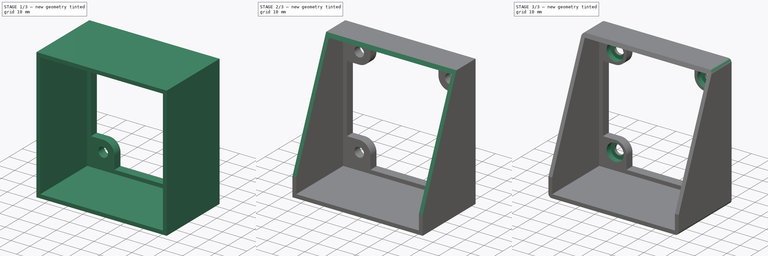
[diagram: build sequence overview — one tinted view per stage of 3, left to right]
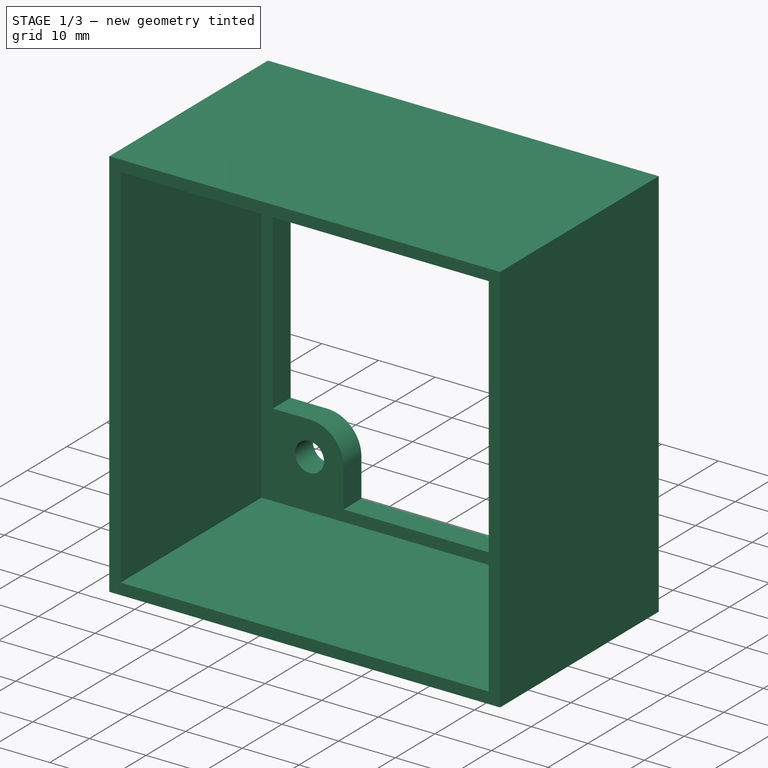
[diagram: stage 1 of 3 — iso view after this stage's code; geometry added in this stage tinted green]
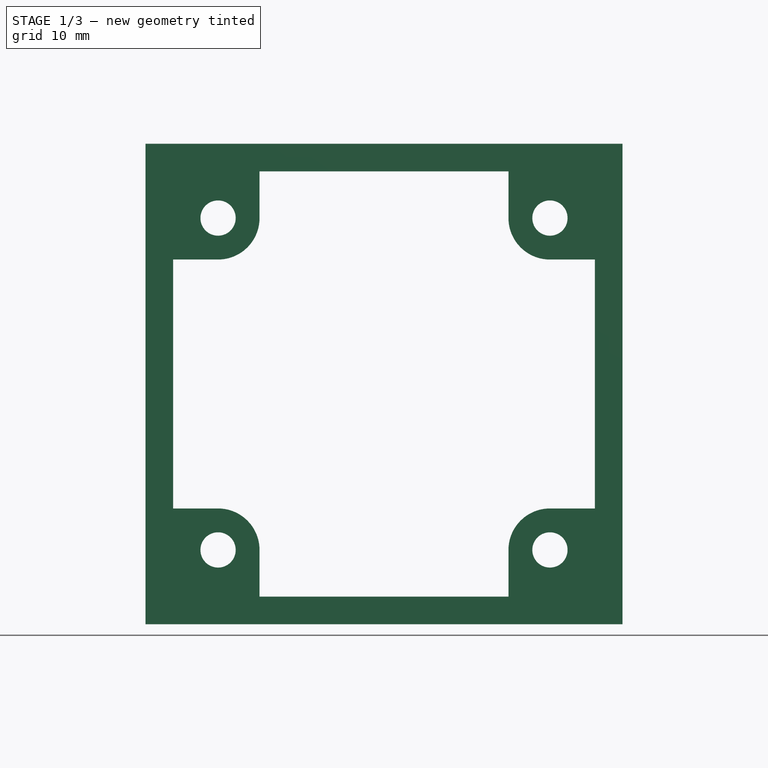
[diagram: stage 1 of 3 — front view after this stage's code; geometry added in this stage tinted green]
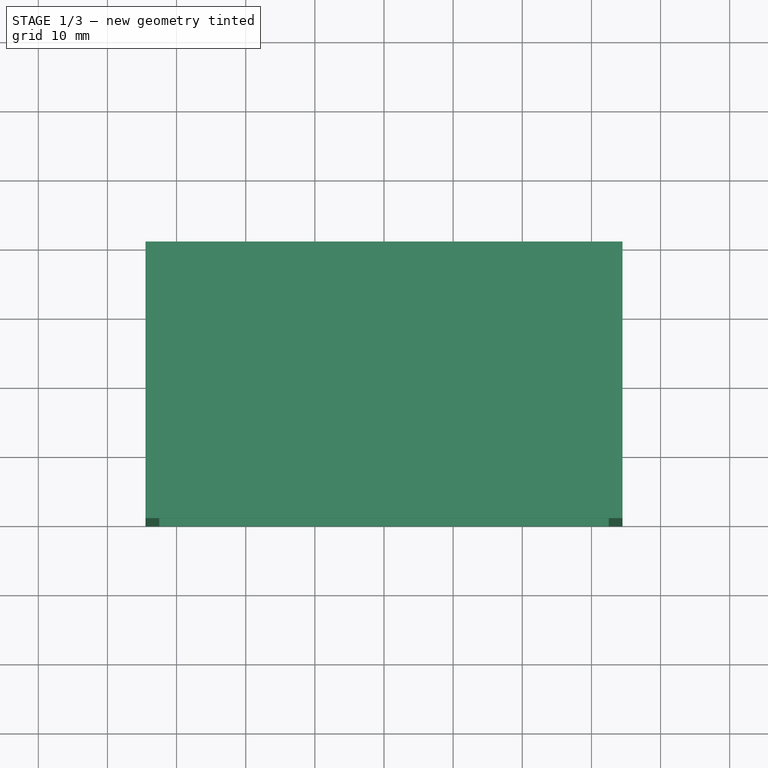
[diagram: stage 1 of 3 — top view after this stage's code; geometry added in this stage tinted green]
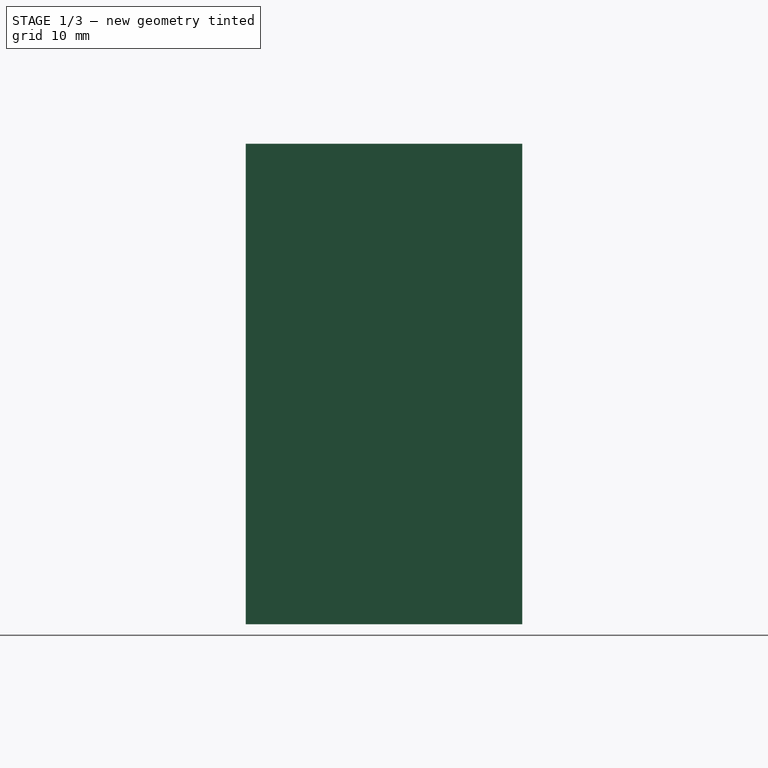
[diagram: stage 1 of 3 — right view after this stage's code; geometry added in this stage tinted green]
FCSTD DOCUMENT  (FreeCAD 0.20R29603 (Git))
Label: bosch-quigo
License: All rights reserved
LicenseURL: http://en.wikipedia.org/wiki/All_rights_reserved
objects: Sketcher::SketchObject×4, PartDesign::Pad×2, PartDesign::Pocket×2, PartDesign::Fillet×1, PartDesign::Body×1
note: 15 computed .brp shape members not serialized (recipe doc carries the construction recipe); baked Part::Feature solids carry a one-line shape summary decoded from their .brp

FEATURE [Sketcher::SketchObject] Sketch
  FullyConstrained = false
  MapMode = 5
  Placement = pos=(0,0,0) rot=(1,0,0;1.5708rad)
  Support = -> [XZ_Plane]
  sketch-geometry (28):
    g0: LineSegment StartX=-18 StartY=30.75 StartZ=0 EndX=18 EndY=30.75 EndZ=0
    g1: LineSegment StartX=30.5 StartY=18 StartZ=0 EndX=30.5 EndY=-18 EndZ=0
    g2: LineSegment StartX=18 StartY=-30.75 StartZ=0 EndX=-18 EndY=-30.75 EndZ=0
    g3: LineSegment StartX=-30.5 StartY=-18 StartZ=0 EndX=-30.5 EndY=18 EndZ=0
    g4: LineSegment StartX=-34.5 StartY=34.75 StartZ=0 EndX=34.5 EndY=34.75 EndZ=0
    g5: LineSegment StartX=34.5 StartY=34.75 StartZ=0 EndX=34.5 EndY=-34.75 EndZ=0
    g6: LineSegment StartX=34.5 StartY=-34.75 StartZ=0 EndX=-34.5 EndY=-34.75 EndZ=0
    g7: LineSegment StartX=-34.5 StartY=-34.75 StartZ=0 EndX=-34.5 EndY=34.75 EndZ=0
    g8: Circle CenterX=-24 CenterY=24 CenterZ=0 NormalX=0 NormalY=0 NormalZ=1 AngleXU=0 Radius=2.55
    g9: Circle CenterX=24 CenterY=24 CenterZ=0 NormalX=0 NormalY=0 NormalZ=1 AngleXU=0 Radius=2.55
    g10: Circle CenterX=-24 CenterY=-24 CenterZ=0 NormalX=0 NormalY=0 NormalZ=1 AngleXU=0 Radius=2.55
    g11: Circle CenterX=24 CenterY=-24 CenterZ=0 NormalX=0 NormalY=0 NormalZ=1 AngleXU=0 Radius=2.55
    g12: LineSegment StartX=-18 StartY=30.75 StartZ=0 EndX=-18 EndY=24 EndZ=0
    g13: LineSegment StartX=-30.5 StartY=18 StartZ=0 EndX=-24 EndY=18 EndZ=0
    g14: LineSegment StartX=-30.5 StartY=-18 StartZ=0 EndX=-24 EndY=-18 EndZ=0
    g15: LineSegment StartX=-18 StartY=-24 StartZ=0 EndX=-18 EndY=-30.75 EndZ=0
    g16: LineSegment StartX=24 StartY=18 StartZ=0 EndX=30.5 EndY=18 EndZ=0
    g17: ArcOfCircle CenterX=-24 CenterY=24 CenterZ=0 NormalX=0 NormalY=0 NormalZ=1 AngleXU=0 Radius=6 StartAngle=4.71239 EndAngle=6.28319
    g18: ArcOfCircle CenterX=24 CenterY=24 CenterZ=0 NormalX=0 NormalY=0 NormalZ=1 AngleXU=0 Radius=6 StartAngle=3.14159 EndAngle=4.71239
    g19: ArcOfCircle CenterX=-24 CenterY=-24 CenterZ=0 NormalX=0 NormalY=0 NormalZ=1 AngleXU=0 Radius=6 StartAngle=5e-16 EndAngle=1.5708
    g20: LineSegment StartX=-24 StartY=24 StartZ=0 EndX=24 EndY=24 EndZ=0
    g21: LineSegment StartX=24 StartY=24 StartZ=0 EndX=24 EndY=-24 EndZ=0
    g22: LineSegment StartX=24 StartY=-24 StartZ=0 EndX=-24 EndY=-24 EndZ=0
    g23: LineSegment StartX=-24 StartY=-24 StartZ=0 EndX=-24 EndY=24 EndZ=0
    g24: LineSegment StartX=18 StartY=30.75 StartZ=0 EndX=18 EndY=24 EndZ=0
    g25: LineSegment StartX=18 StartY=-30.75 StartZ=0 EndX=18 EndY=-24 EndZ=0
    g26: LineSegment StartX=24 StartY=-18 StartZ=0 EndX=30.5 EndY=-18 EndZ=0
    g27: ArcOfCircle CenterX=24 CenterY=-24 CenterZ=0 NormalX=0 NormalY=0 NormalZ=1 AngleXU=0 Radius=6 StartAngle=1.5708 EndAngle=3.14159
  constraints (75):
    c: Horizontal(g0)
    c: Horizontal(g2)
    c: Vertical(g1)
    c: Vertical(g3)
    c: Coincident(g4,g5)
    c: Coincident(g5,g6)
    c: Coincident(g6,g7)
    c: Coincident(g7,g4)
    c: Horizontal(g4)
    c: Horizontal(g6)
    c: Vertical(g5)
    c: Vertical(g7)
    c: Symmetric(g4,g5,g-1)
    c: Horizontal(g13)
    c: Horizontal(g16)
    c: Horizontal(g14)
    c: Vertical(g12)
    c: Vertical(g15)
    c: Equal(g13,g14)
    c: Equal(g16,g13)
    c: Coincident(g15,g19)
    c: Coincident(g14,g19)
    c: Coincident(g17,g12)
    c: Coincident(g17,g13)
    c: Coincident(g16,g18)
    c: Equal(g8,g9)
    c: Equal(g9,g11)
    c: Equal(g11,g10)
    c: Diameter(g8) = 5.1
    c: Coincident(g17,g8)
    c: Coincident(g9,g18)
    c: Coincident(g10,g19)
    c: Coincident(g20,g21)
    c: Coincident(g21,g22)
    c: Coincident(g22,g23)
    c: Coincident(g23,g20)
    c: Horizontal(g20)
    c: Horizontal(g22)
    c: Vertical(g21)
    c: Vertical(g23)
    c: Symmetric(g20,g21,g-1)
    c: Equal(g20,g21)
    c: DistanceY(g21,g21) = 48
    c: Coincident(g10,g22)
    c: Coincident(g11,g21)
    c: Coincident(g9,g20)
    c: Coincident(g8,g20)
    c: PointOnObject(g12,g20)
    c: Distance(g12,g8) = 6
    c: PointOnObject(g13,g23)
    c: Coincident(g24,g18)
    c: Vertical(g24)
    c: Equal(g12,g24)
    c: Symmetric(g13,g14,g-1)
    c: Symmetric(g12,g24,g-2)
    c: Symmetric(g16,g26,g-1)
    c: Symmetric(g15,g25,g-2)
    c: Coincident(g27,g11)
    c: Vertical(g25)
    c: Horizontal(g26)
    c: Coincident(g27,g25)
    c: Coincident(g27,g26)
    c: PointOnObject(g15,g22)
    c: PointOnObject(g25,g22)
    c: PointOnObject(g3,g13)
    c: Coincident(g0,g12)
    c: Coincident(g1,g16)
    c: PointOnObject(g2,g25)
    c: Coincident(g2,g15)
    c: Coincident(g3,g14)
    c: Distance(g0,g2) = 61.5
    c: Distance(g3,g1) = 61
    c: DistanceY(g0,g4) = 4
    c: DistanceX(g4,g3) = 4
    c: Symmetric(g3,g1,g-1)
FEATURE [PartDesign::Pad] Pad
  Direction = (0,-1,2e-16)
  Length = 4.5
  Length2 = 10
  Placement = pos=(0,0,0) rot=(1,0,0;1.5708rad)
  Profile = -> Sketch
  ReferenceAxis = -> Sketch [N_Axis]
  Type = 0
FEATURE [Sketcher::SketchObject] Sketch001
  ExternalGeometry = -> [Pad]
  FullyConstrained = true
  MapMode = 5
  Placement = pos=(0,0,0) rot=(1,0,0;1.5708rad)
  Support = -> [XZ_Plane]
  sketch-geometry (8):
    g0: LineSegment StartX=-34.5 StartY=34.75 StartZ=0 EndX=34.5 EndY=34.75 EndZ=0
    g1: LineSegment StartX=34.5 StartY=34.75 StartZ=0 EndX=34.5 EndY=-34.75 EndZ=0
    g2: LineSegment StartX=34.5 StartY=-34.75 StartZ=0 EndX=-34.5 EndY=-34.75 EndZ=0
    g3: LineSegment StartX=-34.5 StartY=-34.75 StartZ=0 EndX=-34.5 EndY=34.75 EndZ=0
    g4: LineSegment StartX=-32.5 StartY=32.75 StartZ=0 EndX=32.5 EndY=32.75 EndZ=0
    g5: LineSegment StartX=32.5 StartY=32.75 StartZ=0 EndX=32.5 EndY=-32.75 EndZ=0
    g6: LineSegment StartX=32.5 StartY=-32.75 StartZ=0 EndX=-32.5 EndY=-32.75 EndZ=0
    g7: LineSegment StartX=-32.5 StartY=-32.75 StartZ=0 EndX=-32.5 EndY=32.75 EndZ=0
  constraints (21):
    c: Coincident(g0,g1)
    c: Coincident(g1,g2)
    c: Coincident(g2,g3)
    c: Coincident(g3,g0)
    c: Horizontal(g0)
    c: Horizontal(g2)
    c: Vertical(g1)
    c: Vertical(g3)
    c: Coincident(g0,g-4)
    c: Coincident(g1,g-6)
    c: Coincident(g4,g5)
    c: Coincident(g5,g6)
    c: Coincident(g6,g7)
    c: Coincident(g7,g4)
    c: Horizontal(g4)
    c: Horizontal(g6)
    c: Vertical(g5)
    c: Vertical(g7)
    c: Distance(g4,g3) = 2
    c: Distance(g4,g0) = 2
    c: Symmetric(g4,g5,g-1)
FEATURE [PartDesign::Pad] Pad001
  BaseFeature = -> Pad
  Direction = (0,-1,2e-16)
  Length = 40
  Length2 = 10
  Placement = pos=(0,0,0) rot=(1,0,0;1.5708rad)
  Profile = -> Sketch001
  ReferenceAxis = -> Sketch001 [N_Axis]
  Type = 0
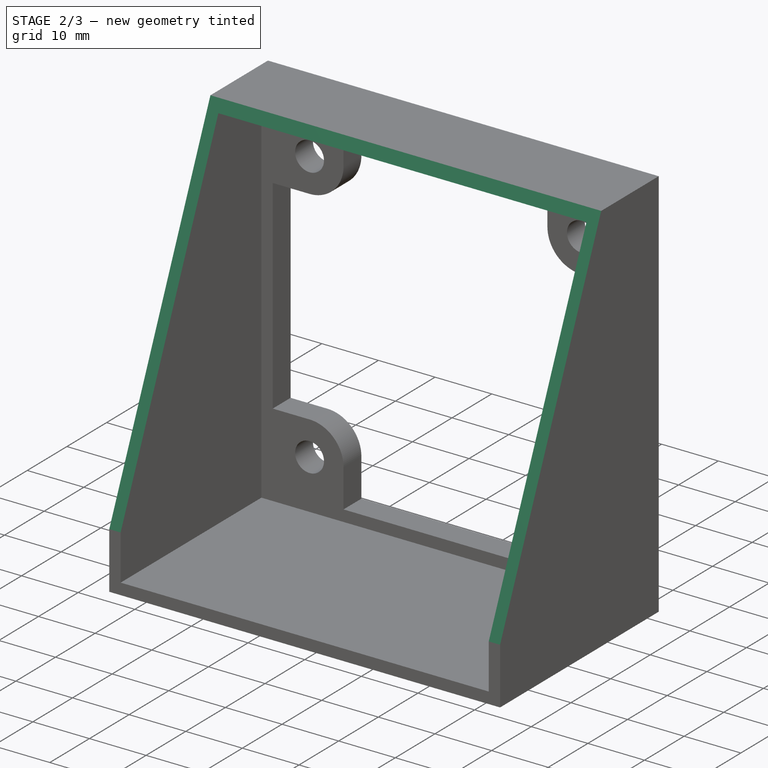
[diagram: stage 2 of 3 — iso view after this stage's code; geometry added in this stage tinted green]
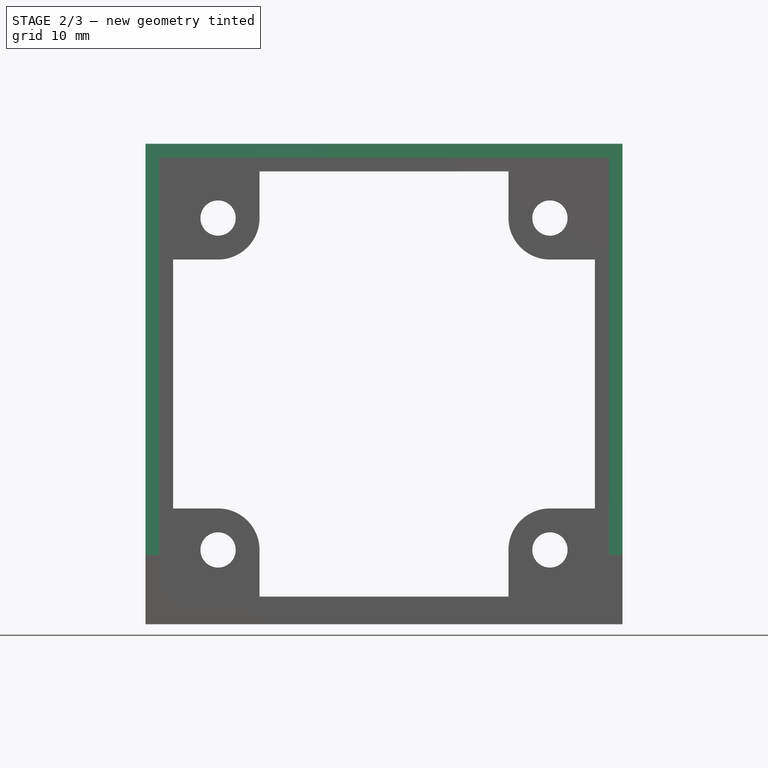
[diagram: stage 2 of 3 — front view after this stage's code; geometry added in this stage tinted green]
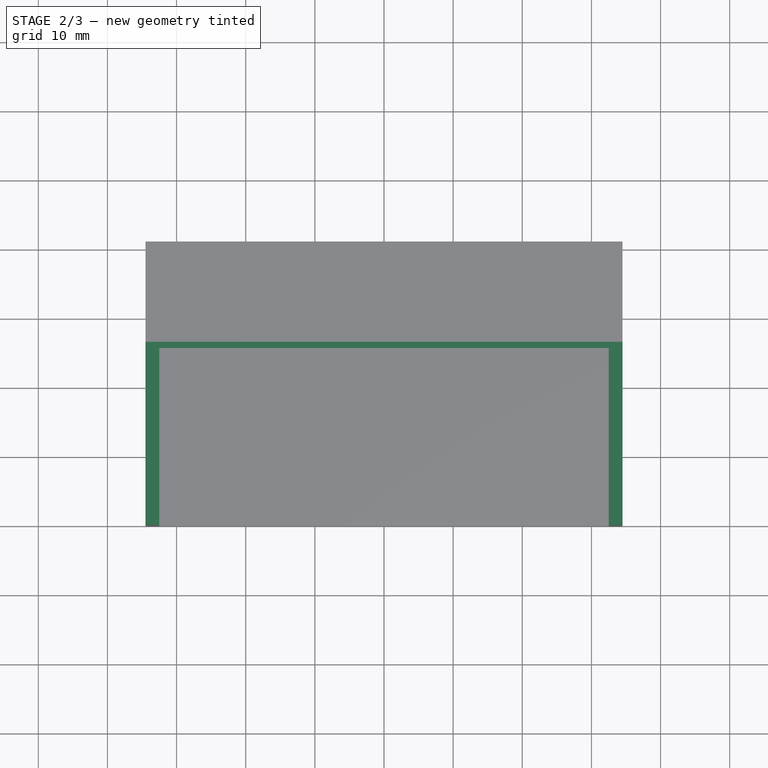
[diagram: stage 2 of 3 — top view after this stage's code; geometry added in this stage tinted green]
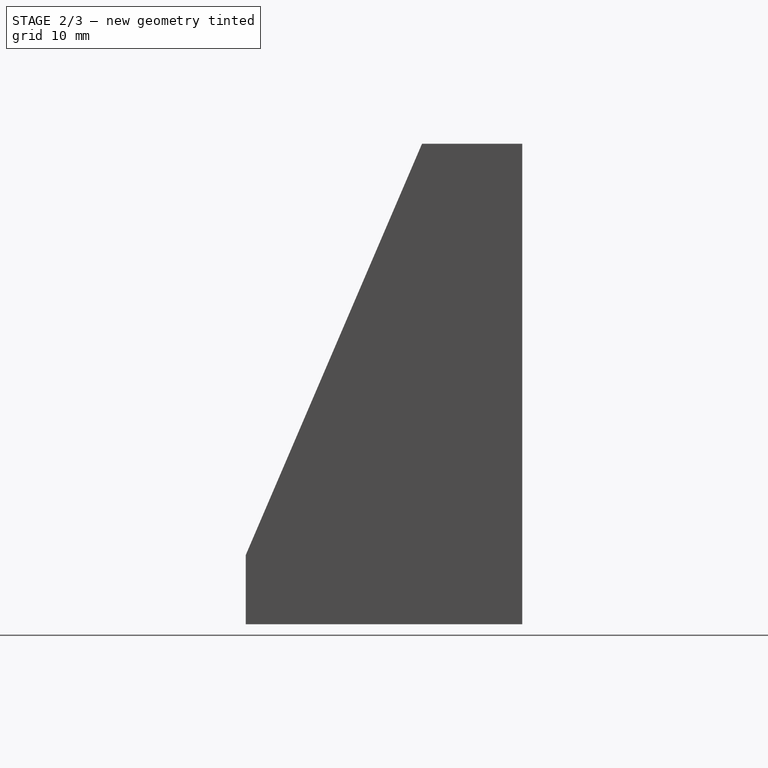
[diagram: stage 2 of 3 — right view after this stage's code; geometry added in this stage tinted green]
FEATURE [Sketcher::SketchObject] Sketch002
  ExternalGeometry = -> [Pad001]
  FullyConstrained = true
  MapMode = 5
  Placement = pos=(-34.5,0,0) rot=(0.707107,0,-0.707107;3.14159rad)
  Support = -> [Pad001]
  sketch-geometry (3):
    g0: LineSegment StartX=-34.75 StartY=14.5 StartZ=0 EndX=24.75 EndY=40 EndZ=0
    g1: LineSegment StartX=-34.75 StartY=14.5 StartZ=0 EndX=-34.75 EndY=40 EndZ=0
    g2: LineSegment StartX=-34.75 StartY=40 StartZ=0 EndX=24.75 EndY=40 EndZ=0
  constraints (8):
    c: PointOnObject(g0,g-3)
    c: PointOnObject(g0,g-4)
    c: Distance(g-3,g0) = 10
    c: Distance(g0,g-5) = 10
    c: Coincident(g1,g2)
    c: Coincident(g1,g-4)
    c: Coincident(g1,g0)
    c: Coincident(g2,g0)
FEATURE [PartDesign::Pocket] Pocket
  BaseFeature = -> Pad001
  Direction = (1,0,2e-16)
  Length = 5
  Length2 = 5
  Placement = pos=(0,0,0) rot=(1,0,0;1.5708rad)
  Profile = -> Sketch002
  ReferenceAxis = -> Sketch002 [N_Axis]
  Type = 1
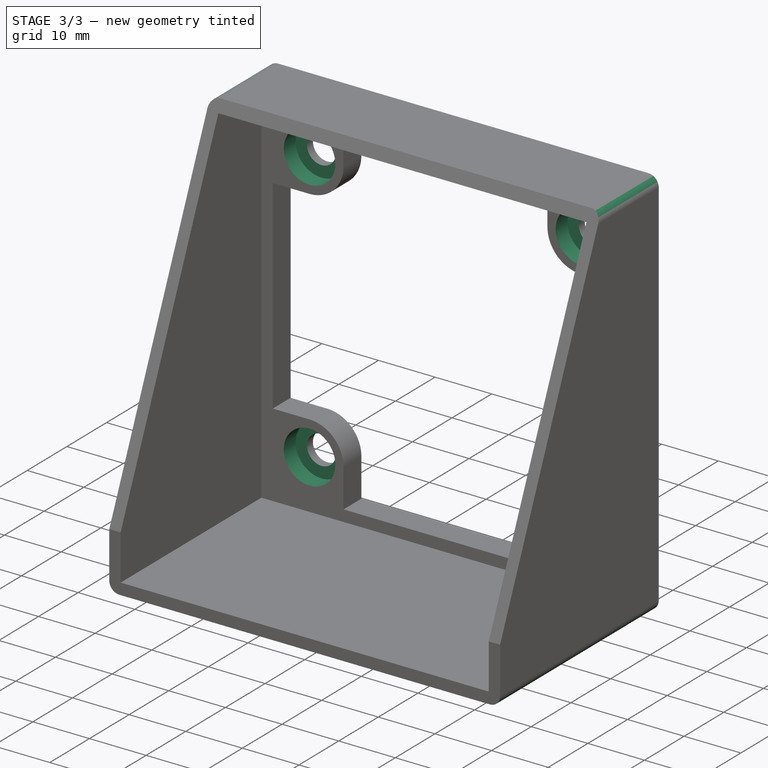
[diagram: stage 3 of 3 — iso view after this stage's code; geometry added in this stage tinted green]
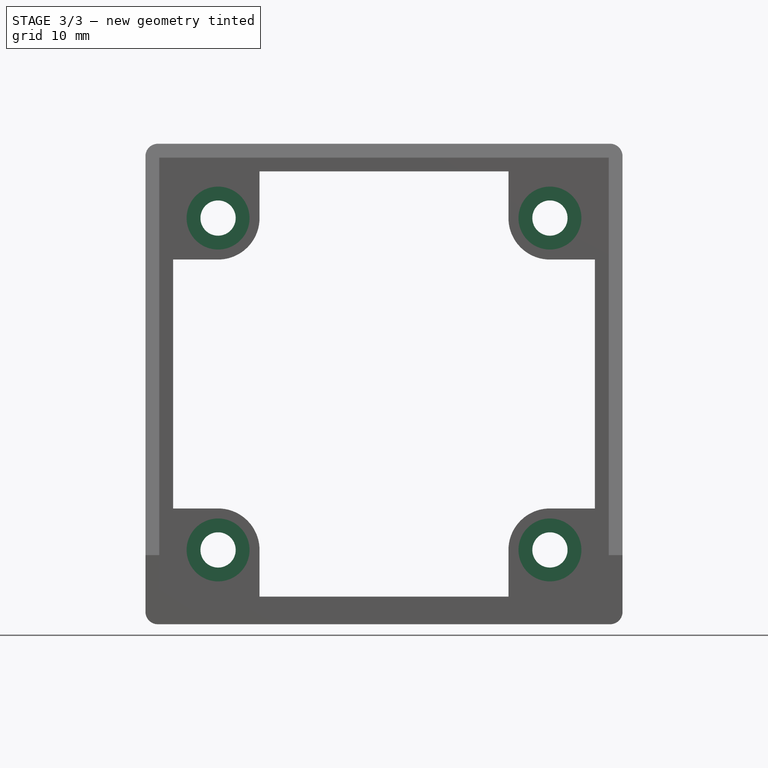
[diagram: stage 3 of 3 — front view after this stage's code; geometry added in this stage tinted green]
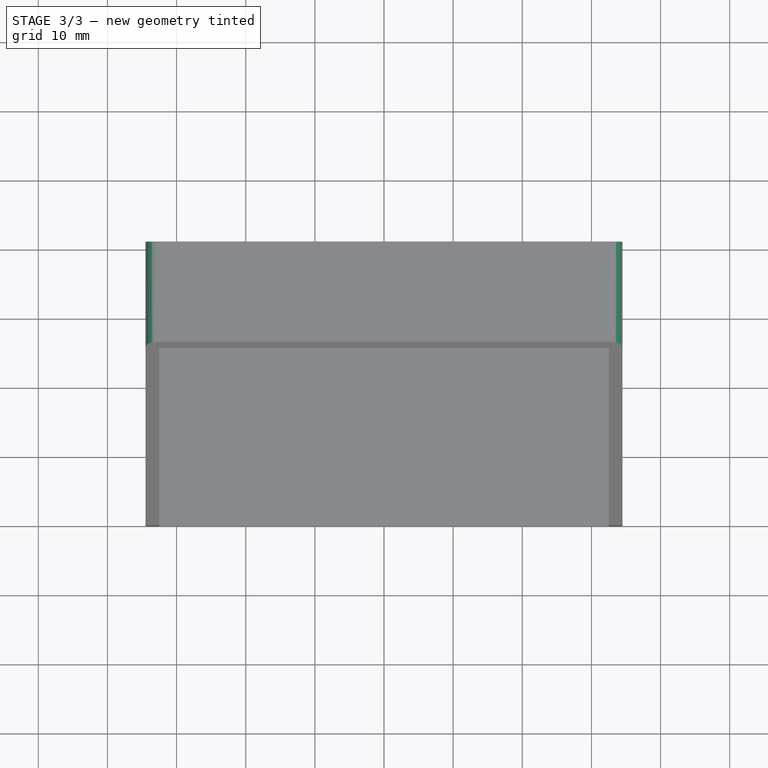
[diagram: stage 3 of 3 — top view after this stage's code; geometry added in this stage tinted green]
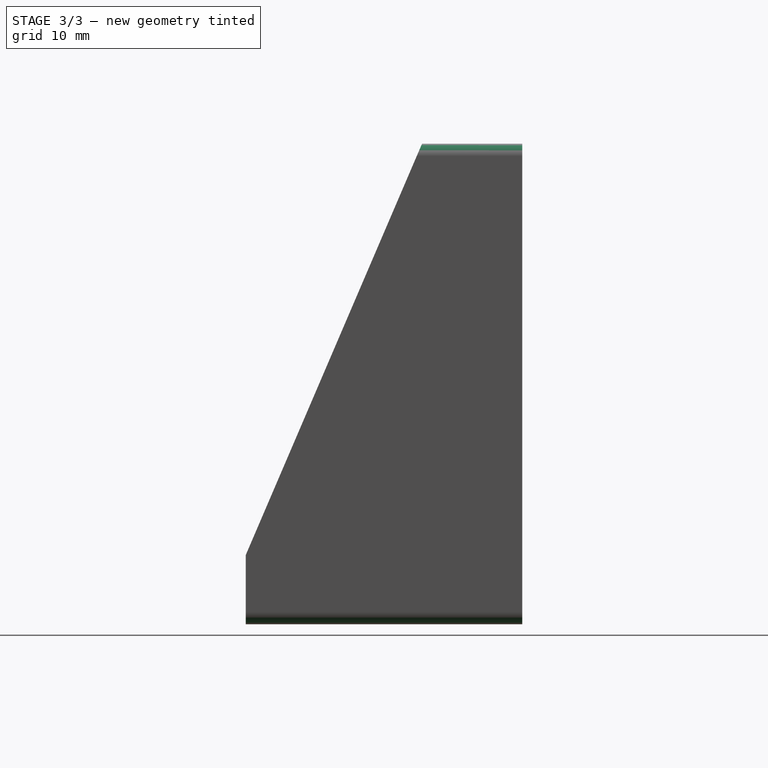
[diagram: stage 3 of 3 — right view after this stage's code; geometry added in this stage tinted green]
FEATURE [Sketcher::SketchObject] Sketch003
  ExternalGeometry = -> [Pocket]
  FullyConstrained = true
  MapMode = 5
  Placement = pos=(0,-4.5,1e-15) rot=(1,0,0;1.5708rad)
  Support = -> [Pocket]
  sketch-geometry (4):
    g0: Circle CenterX=-24 CenterY=24 CenterZ=0 NormalX=0 NormalY=0 NormalZ=1 AngleXU=0 Radius=4.55
    g1: Circle CenterX=24 CenterY=24 CenterZ=0 NormalX=0 NormalY=0 NormalZ=1 AngleXU=0 Radius=4.55
    g2: Circle CenterX=-24 CenterY=-24 CenterZ=0 NormalX=0 NormalY=0 NormalZ=1 AngleXU=0 Radius=4.55
    g3: Circle CenterX=24 CenterY=-24 CenterZ=0 NormalX=0 NormalY=0 NormalZ=1 AngleXU=0 Radius=4.55
  constraints (8):
    c: Diameter(g0) = 9.1
    c: Coincident(g0,g-3)
    c: Coincident(g1,g-4)
    c: Coincident(g3,g-5)
    c: Coincident(g2,g-6)
    c: Equal(g0,g1)
    c: Equal(g0,g2)
    c: Equal(g0,g3)
FEATURE [PartDesign::Pocket] Pocket001
  BaseFeature = -> Pocket
  Direction = (0,1,-2e-16)
  Length = 3
  Length2 = 5
  Placement = pos=(0,0,0) rot=(1,0,0;1.5708rad)
  Profile = -> Sketch003
  ReferenceAxis = -> Sketch003 [N_Axis]
  Type = 0
FEATURE [PartDesign::Fillet] Fillet
  Base = -> Pocket001 [Edge18,Edge1,Edge5,Edge22,Edge23,Edge8,Edge16,Edge2]
  BaseFeature = -> Pocket001
  Placement = pos=(0,0,0) rot=(1,0,0;1.5708rad)
  Radius = 1.8
  SupportTransform = false
  UseAllEdges = false
FEATURE [PartDesign::Body] Body
  Group = -> [Sketch,Pad,Sketch001,Pad001,Sketch002,Pocket,Sketch003,Pocket001,Fillet]
  Origin = -> Origin
  Tip = -> Fillet
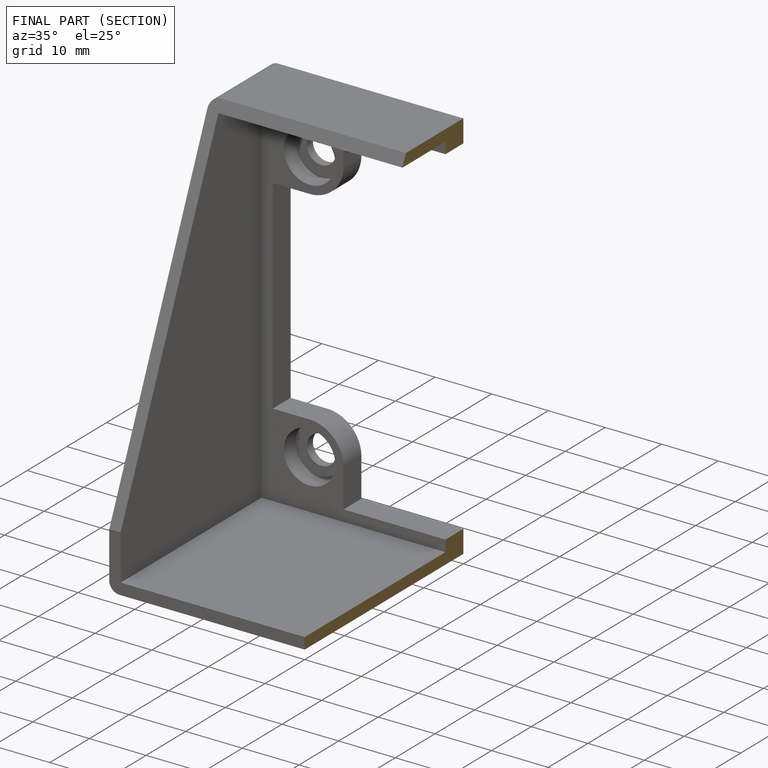
[diagram: finished part — half-section view (interior)]
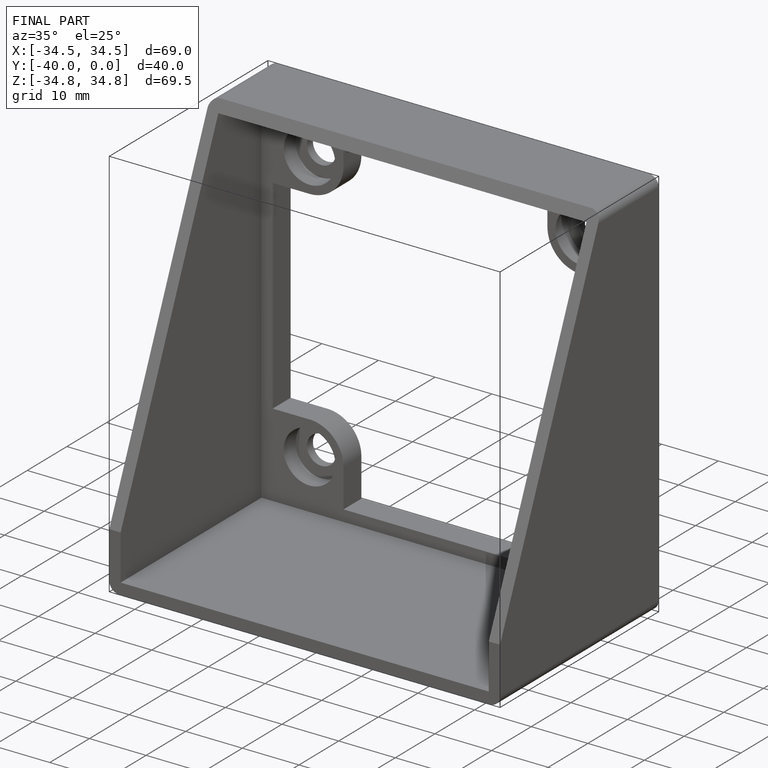
[diagram: finished part — iso view with bounding-box wireframe]
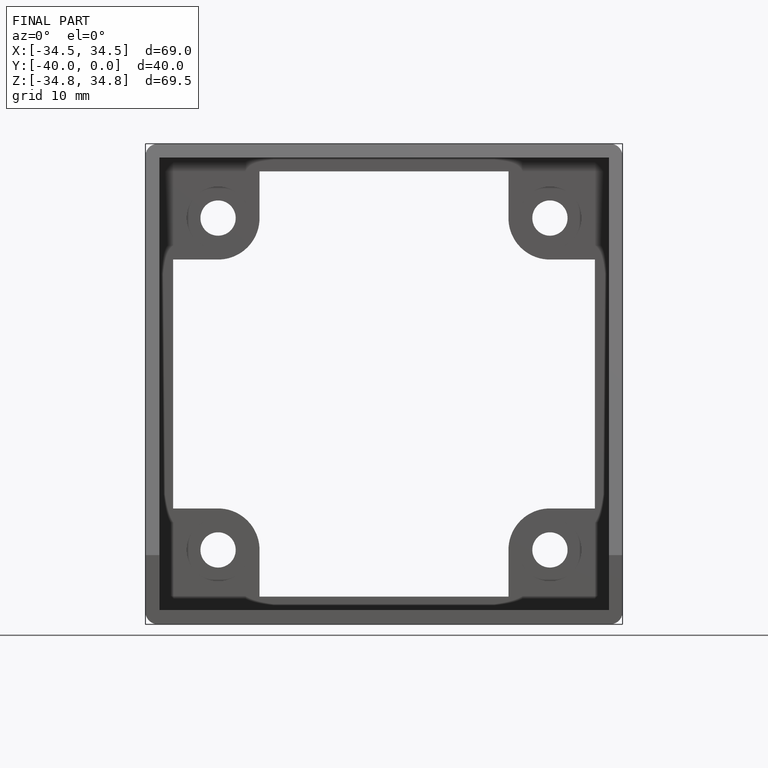
[diagram: finished part — front view with bounding-box wireframe]
